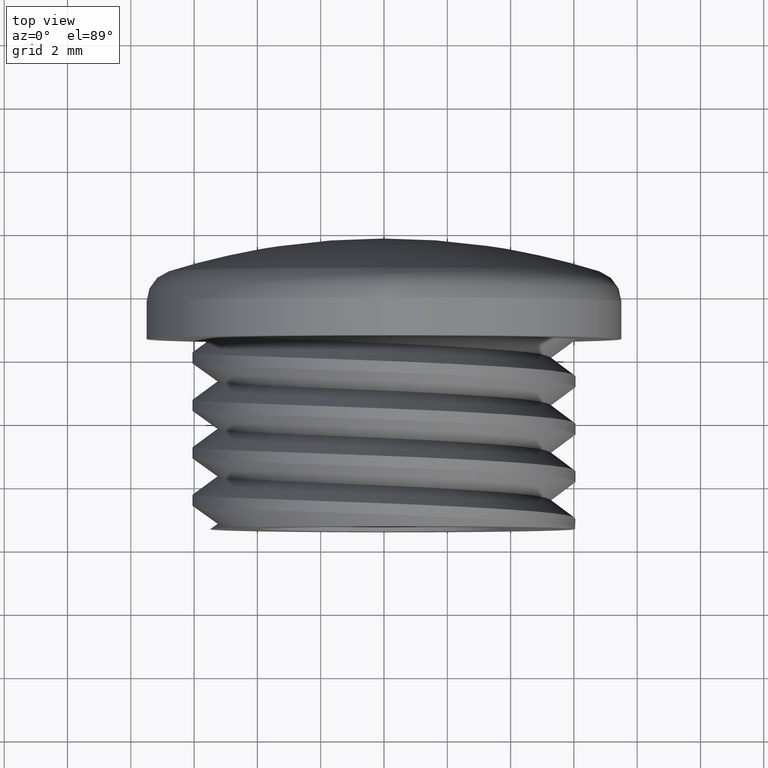
[diagram: clean part render]
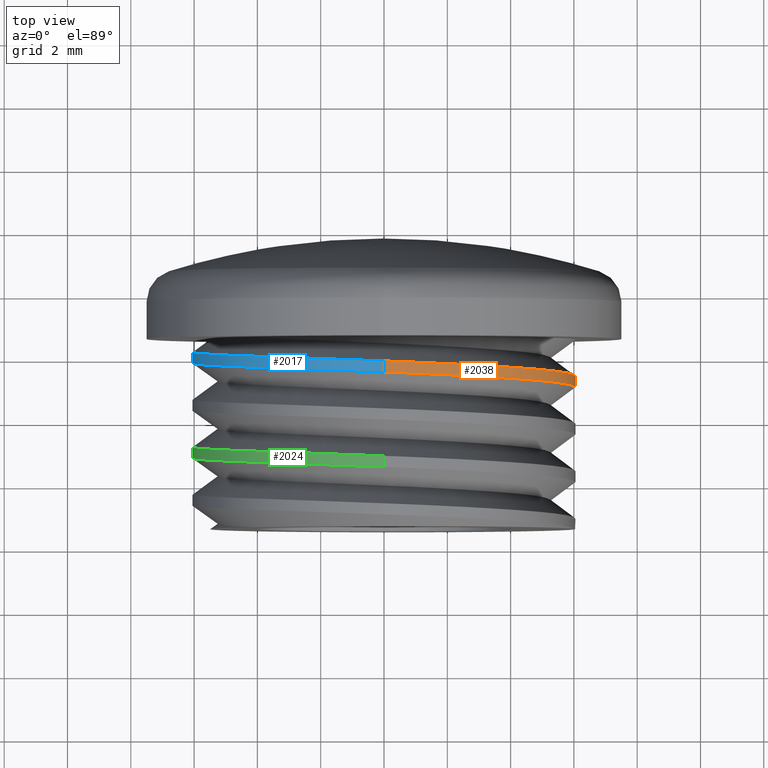
[diagram: same view with three faces highlighted in distinct colors, each labeled with its STEP entity id]
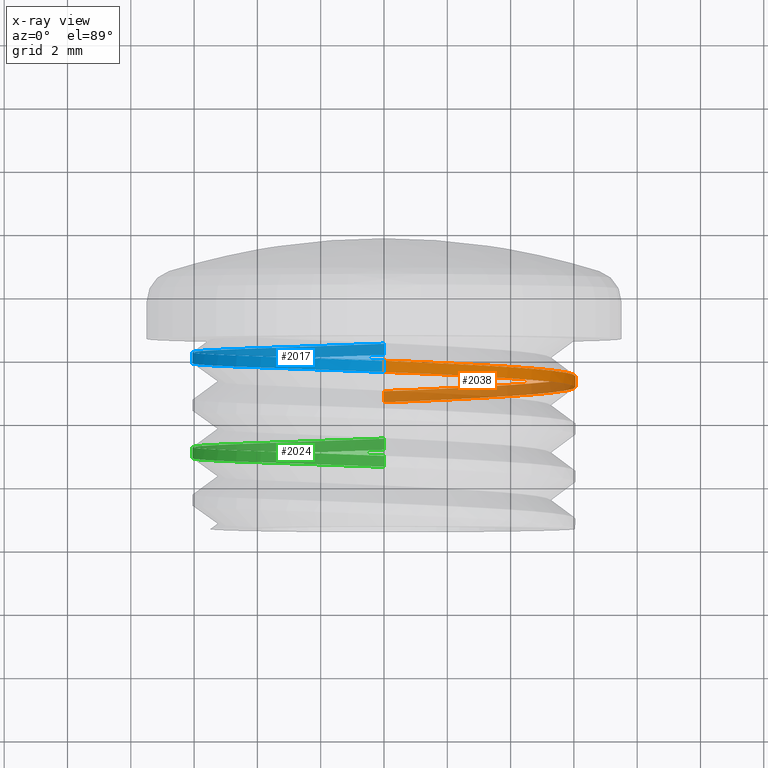
[diagram: x-ray of the same camera — body ghosted, the three highlighted faces saturated]
A machine part, top view with three faces highlighted in distinct colors.
The next image is the same camera in x-ray (body ghosted, the three faces saturated) — at least one of them is partly hidden behind the body in this view.
Their STEP definitions:

[orange] entity #2038 — the highlighted cylindrical surface (partial cylindrical patch) has radius 6.05 mm, axis along (-0, -1, -0).
#445 = FACE_OUTER_BOUND ( 'NONE', #1603, .T. ) ;
#662 = CYLINDRICAL_SURFACE ( 'NONE', #2178, 6.049999999999999800 ) ;
#663 = CARTESIAN_POINT ( 'NONE',  ( 0.0000000000000000000, 0.0000000000000000000, 0.0000000000000000000 ) ) ;
#664 = DIRECTION ( 'NONE',  ( -0.0000000000000000000, -1.000000000000000000, -0.0000000000000000000 ) ) ;
#666 = DIRECTION ( 'NONE',  ( 0.0000000000000000000, 0.0000000000000000000, -1.000000000000000000 ) ) ;
#1085 = CARTESIAN_POINT ( 'NONE',  ( -1.432325089619733300E-012, 5.449873890653093700, 6.049999999999999800 ) ) ;
#1086 = CARTESIAN_POINT ( 'NONE',  ( 2.505992052357224300, 4.793623890653036000, -6.049999999999995400 ) ) ;
#1090 = CARTESIAN_POINT ( 'NONE',  ( 4.277996026178607600, 4.887373890653036000, -4.277996026178607600 ) ) ;
#1092 = CARTESIAN_POINT ( 'NONE',  ( 2.505992052355885400, 5.356123890653108800, 6.050000000001335600 ) ) ;
#1100 = LINE ( 'NONE', #1101, #2147 ) ;
#1101 = CARTESIAN_POINT ( 'NONE',  ( 0.0000000000000000000, 0.0000000000000000000, -6.049999999999999800 ) ) ;
#1103 = CARTESIAN_POINT ( 'NONE',  ( 6.049999999999994500, 5.074873890653036000, 1.481822626968295700E-015 ) ) ;
#1109 = DIRECTION ( 'NONE',  ( -0.0000000000000000000, -1.000000000000000000, -0.0000000000000000000 ) ) ;
#1110 = CARTESIAN_POINT ( 'NONE',  ( 6.049999999999994500, 5.168623890653035100, 2.505992052357227000 ) ) ;
#1111 = CARTESIAN_POINT ( 'NONE',  ( 3.704556567420743300E-016, 4.699873890653040400, -6.049999999999999800 ) ) ;
#1125 = CARTESIAN_POINT ( 'NONE',  ( 4.277996026178606700, 5.262373890653036000, 4.277996026178608500 ) ) ;
#1130 = CARTESIAN_POINT ( 'NONE',  ( 6.049999999999995400, 4.981123890653036800, -2.505992052357224300 ) ) ;
#1182 = CARTESIAN_POINT ( 'NONE',  ( 2.505992052357227000, 5.706376109346960500, 6.050000000000001600 ) ) ;
#1189 = CARTESIAN_POINT ( 'NONE',  ( -8.632929976661989300E-013, 5.050126109346927600, -6.049999999999999800 ) ) ;
#1196 = CARTESIAN_POINT ( 'NONE',  ( 2.505992052356123000, 5.143876109346901000, -6.050000000001104700 ) ) ;
#1197 = CARTESIAN_POINT ( 'NONE',  ( 6.050000000000001600, 5.518876109346960500, 2.505992052357228800 ) ) ;
#1202 = CARTESIAN_POINT ( 'NONE',  ( 6.050000000000001600, 5.331376109346959600, -2.505992052357226100 ) ) ;
#1210 = CARTESIAN_POINT ( 'NONE',  ( 4.277996026178611200, 5.612626109346961400, 4.277996026178613000 ) ) ;
#1213 = CARTESIAN_POINT ( 'NONE',  ( -1.111366970226222900E-015, 5.800126109346960500, 6.049999999999999800 ) ) ;
#1224 = CARTESIAN_POINT ( 'NONE',  ( 4.277996026178612100, 5.237626109346959600, -4.277996026178612100 ) ) ;
#1226 = CARTESIAN_POINT ( 'NONE',  ( 6.049999999999998900, 5.425126109346960500, 1.481822626968297100E-015 ) ) ;
#1352 = CARTESIAN_POINT ( 'NONE',  ( 7.409113134841486500E-016, 0.0000000000000000000, 6.049999999999999800 ) ) ;
#1358 = LINE ( 'NONE', #1352, #2169 ) ;
#1385 = DIRECTION ( 'NONE',  ( -0.0000000000000000000, -1.000000000000000000, -0.0000000000000000000 ) ) ;
#1603 = EDGE_LOOP ( 'NONE', ( #1622, #1616, #1638, #1619 ) ) ;
#1616 = ORIENTED_EDGE ( 'NONE', *, *, #2009, .T. ) ;
#1619 = ORIENTED_EDGE ( 'NONE', *, *, #1971, .F. ) ;
#1622 = ORIENTED_EDGE ( 'NONE', *, *, #1992, .T. ) ;
#1638 = ORIENTED_EDGE ( 'NONE', *, *, #1972, .T. ) ;
#1764 = VERTEX_POINT ( 'NONE', #1826 ) ;
#1776 = VERTEX_POINT ( 'NONE', #1857 ) ;
#1806 = VERTEX_POINT ( 'NONE', #1863 ) ;
#1815 = VERTEX_POINT ( 'NONE', #1823 ) ;
#1823 = CARTESIAN_POINT ( 'NONE',  ( -8.632929976661989300E-013, 5.050126109346927600, -6.049999999999999800 ) ) ;
#1826 = CARTESIAN_POINT ( 'NONE',  ( 3.704556567420743300E-016, 4.699873890653040400, -6.049999999999999800 ) ) ;
#1857 = CARTESIAN_POINT ( 'NONE',  ( -1.111366970226222900E-015, 5.800126109346960500, 6.049999999999999800 ) ) ;
#1863 = CARTESIAN_POINT ( 'NONE',  ( -1.432325089619733300E-012, 5.449873890653093700, 6.049999999999999800 ) ) ;
#1971 = EDGE_CURVE ( 'NONE', #1815, #1764, #1100, .T. ) ;
#1972 = EDGE_CURVE ( 'NONE', #1806, #1764, #2076, .T. ) ;
#1992 = EDGE_CURVE ( 'NONE', #1815, #1776, #2054, .T. ) ;
#2009 = EDGE_CURVE ( 'NONE', #1776, #1806, #1358, .T. ) ;
#2038 = ADVANCED_FACE ( 'NONE', ( #445 ), #662, .T. ) ;
#2054 =( BOUNDED_CURVE ( )  B_SPLINE_CURVE ( 2, ( #1189, #1196, #1224, #1202, #1226, #1197, #1210, #1182, #1213 ),
 .UNSPECIFIED., .F., .T. ) 
 B_SPLINE_CURVE_WITH_KNOTS ( ( 3, 2, 2, 2, 3 ),
 ( 0.1125258476580255200, 0.1172573869102881600, 0.1219889261625507800, 0.1267204654148133800, 0.1314520046670760200 ),
 .UNSPECIFIED. ) 
 CURVE ( )  GEOMETRIC_REPRESENTATION_ITEM ( )  RATIONAL_B_SPLINE_CURVE ( ( 1.000000000000043700, 0.9238795325112428800, 1.000000000000000000, 0.9238795325112867400, 1.000000000000000000, 0.9238795325112867400, 1.000000000000000000, 0.9238795325112867400, 1.000000000000000000 ) ) 
 REPRESENTATION_ITEM ( '' )  );
#2076 =( BOUNDED_CURVE ( )  B_SPLINE_CURVE ( 2, ( #1085, #1092, #1125, #1110, #1103, #1130, #1090, #1086, #1111 ),
 .UNSPECIFIED., .F., .T. ) 
 B_SPLINE_CURVE_WITH_KNOTS ( ( 3, 2, 2, 2, 3 ),
 ( -0.1135556180597367400, -0.1088241529516597900, -0.1040926878435828300, -0.09936122273550590500, -0.09462975762742895100 ),
 .UNSPECIFIED. ) 
 CURVE ( )  GEOMETRIC_REPRESENTATION_ITEM ( )  RATIONAL_B_SPLINE_CURVE ( ( 1.000000000000053100, 0.9238795325112335600, 1.000000000000000000, 0.9238795325112867400, 1.000000000000000000, 0.9238795325112867400, 1.000000000000000000, 0.9238795325112867400, 1.000000000000000000 ) ) 
 REPRESENTATION_ITEM ( '' )  );
#2147 = VECTOR ( 'NONE', #1109, 1000.000000000000000 ) ;
#2169 = VECTOR ( 'NONE', #1385, 1000.000000000000000 ) ;
#2178 = AXIS2_PLACEMENT_3D ( 'NONE', #663, #664, #666 ) ;

[blue] entity #2017 — the highlighted cylindrical surface (partial cylindrical patch) has radius 6.05 mm, axis along (-0, -1, -0).
#1051 = CARTESIAN_POINT ( 'NONE',  ( -8.386168989998296300E-013, 6.199873890653008400, -6.050000000000001600 ) ) ;
#1071 = LINE ( 'NONE', #1102, #2134 ) ;
#1084 = CARTESIAN_POINT ( 'NONE',  ( -4.277996026178608500, 5.637373890653036000, 4.277996026178607600 ) ) ;
#1089 = CARTESIAN_POINT ( 'NONE',  ( -6.049999999999994500, 5.918623890653036000, -2.505992052357224300 ) ) ;
#1095 = CARTESIAN_POINT ( 'NONE',  ( -2.505992052358565000, 5.543623890653105200, 6.049999999998653300 ) ) ;
#1099 = CARTESIAN_POINT ( 'NONE',  ( -4.277996026178607600, 6.012373890653036000, -4.277996026178607600 ) ) ;
#1102 = CARTESIAN_POINT ( 'NONE',  ( 0.0000000000000000000, 0.0000000000000000000, -6.049999999999999800 ) ) ;
#1106 = CARTESIAN_POINT ( 'NONE',  ( -6.049999999999993600, 5.824873890653036000, -7.409113134841479600E-016 ) ) ;
#1112 = CARTESIAN_POINT ( 'NONE',  ( -2.505992052358316300, 6.106123890652978200, -6.049999999998899400 ) ) ;
#1113 = DIRECTION ( 'NONE',  ( -0.0000000000000000000, -1.000000000000000000, -0.0000000000000000000 ) ) ;
#1114 = CARTESIAN_POINT ( 'NONE',  ( -1.432325089619733300E-012, 5.449873890653093700, 6.049999999999999800 ) ) ;
#1117 = CARTESIAN_POINT ( 'NONE',  ( -6.049999999999994500, 5.731123890653036800, 2.505992052357221700 ) ) ;
#1285 = CARTESIAN_POINT ( 'NONE',  ( -6.049999999999995400, 6.081376109346964000, 2.505992052357221700 ) ) ;
#1301 = CARTESIAN_POINT ( 'NONE',  ( -2.505992052357226100, 5.893876109346964000, 6.049999999999994500 ) ) ;
#1302 = CARTESIAN_POINT ( 'NONE',  ( -4.277996026178608500, 5.987626109346964000, 4.277996026178607600 ) ) ;
#1307 = CARTESIAN_POINT ( 'NONE',  ( -6.049999999999995400, 6.268876109346964900, -2.505992052357224300 ) ) ;
#1308 = CARTESIAN_POINT ( 'NONE',  ( -4.277996026178607600, 6.362626109346963200, -4.277996026178607600 ) ) ;
#1311 = CARTESIAN_POINT ( 'NONE',  ( -1.111366970226222900E-015, 5.800126109346960500, 6.049999999999999800 ) ) ;
#1326 = CARTESIAN_POINT ( 'NONE',  ( -6.049999999999993600, 6.175126109346964000, -7.409113134841479600E-016 ) ) ;
#1329 = CARTESIAN_POINT ( 'NONE',  ( 8.146817116469705000E-013, 6.550126109346993400, -6.050000000000000700 ) ) ;
#1332 = CARTESIAN_POINT ( 'NONE',  ( -2.505992052356139900, 6.456376109347021800, -6.050000000001079000 ) ) ;
#1335 = CYLINDRICAL_SURFACE ( 'NONE', #2168, 6.049999999999999800 ) ;
#1350 = CARTESIAN_POINT ( 'NONE',  ( 0.0000000000000000000, 0.0000000000000000000, 0.0000000000000000000 ) ) ;
#1352 = CARTESIAN_POINT ( 'NONE',  ( 7.409113134841486500E-016, 0.0000000000000000000, 6.049999999999999800 ) ) ;
#1358 = LINE ( 'NONE', #1352, #2169 ) ;
#1364 = DIRECTION ( 'NONE',  ( 0.0000000000000000000, 0.0000000000000000000, -1.000000000000000000 ) ) ;
#1365 = FACE_OUTER_BOUND ( 'NONE', #1598, .T. ) ;
#1383 = DIRECTION ( 'NONE',  ( -0.0000000000000000000, -1.000000000000000000, -0.0000000000000000000 ) ) ;
#1385 = DIRECTION ( 'NONE',  ( -0.0000000000000000000, -1.000000000000000000, -0.0000000000000000000 ) ) ;
#1598 = EDGE_LOOP ( 'NONE', ( #1659, #1650, #1664, #1684 ) ) ;
#1650 = ORIENTED_EDGE ( 'NONE', *, *, #2001, .T. ) ;
#1659 = ORIENTED_EDGE ( 'NONE', *, *, #2009, .F. ) ;
#1664 = ORIENTED_EDGE ( 'NONE', *, *, #1967, .T. ) ;
#1684 = ORIENTED_EDGE ( 'NONE', *, *, #1965, .T. ) ;
#1776 = VERTEX_POINT ( 'NONE', #1857 ) ;
#1806 = VERTEX_POINT ( 'NONE', #1863 ) ;
#1855 = VERTEX_POINT ( 'NONE', #1897 ) ;
#1857 = CARTESIAN_POINT ( 'NONE',  ( -1.111366970226222900E-015, 5.800126109346960500, 6.049999999999999800 ) ) ;
#1859 = VERTEX_POINT ( 'NONE', #1902 ) ;
#1863 = CARTESIAN_POINT ( 'NONE',  ( -1.432325089619733300E-012, 5.449873890653093700, 6.049999999999999800 ) ) ;
#1897 = CARTESIAN_POINT ( 'NONE',  ( 8.146817116469705000E-013, 6.550126109346993400, -6.050000000000000700 ) ) ;
#1902 = CARTESIAN_POINT ( 'NONE',  ( -8.386168989998296300E-013, 6.199873890653008400, -6.050000000000001600 ) ) ;
#1965 = EDGE_CURVE ( 'NONE', #1859, #1806, #2058, .T. ) ;
#1967 = EDGE_CURVE ( 'NONE', #1855, #1859, #1071, .T. ) ;
#2001 = EDGE_CURVE ( 'NONE', #1776, #1855, #2059, .T. ) ;
#2009 = EDGE_CURVE ( 'NONE', #1776, #1806, #1358, .T. ) ;
#2017 = ADVANCED_FACE ( 'NONE', ( #1365 ), #1335, .T. ) ;
#2058 =( BOUNDED_CURVE ( )  B_SPLINE_CURVE ( 2, ( #1051, #1112, #1099, #1089, #1106, #1117, #1084, #1095, #1114 ),
 .UNSPECIFIED., .F., .T. ) 
 B_SPLINE_CURVE_WITH_KNOTS ( ( 3, 2, 2, 2, 3 ),
 ( -0.1324814481277615000, -0.1277499906107553200, -0.1230185330937491200, -0.1182870755767429200, -0.1135556180597367400 ),
 .UNSPECIFIED. ) 
 CURVE ( )  GEOMETRIC_REPRESENTATION_ITEM ( )  RATIONAL_B_SPLINE_CURVE ( ( 0.9999999999999565900, 0.9238795325113301500, 1.000000000000000000, 0.9238795325112867400, 1.000000000000000000, 0.9238795325112867400, 1.000000000000000000, 0.9238795325113399200, 0.9999999999999468200 ) ) 
 REPRESENTATION_ITEM ( '' )  );
#2059 =( BOUNDED_CURVE ( )  B_SPLINE_CURVE ( 2, ( #1311, #1301, #1302, #1285, #1326, #1307, #1308, #1332, #1329 ),
 .UNSPECIFIED., .F., .T. ) 
 B_SPLINE_CURVE_WITH_KNOTS ( ( 3, 2, 2, 2, 3 ),
 ( 0.1314520046670760200, 0.1361835515105396800, 0.1409150983540033400, 0.1456466451974670100, 0.1503781920409306700 ),
 .UNSPECIFIED. ) 
 CURVE ( )  GEOMETRIC_REPRESENTATION_ITEM ( )  RATIONAL_B_SPLINE_CURVE ( ( 1.000000000000000000, 0.9238795325112867400, 1.000000000000000000, 0.9238795325112867400, 1.000000000000000000, 0.9238795325112867400, 1.000000000000000000, 0.9238795325112437700, 1.000000000000043100 ) ) 
 REPRESENTATION_ITEM ( '' )  );
#2134 = VECTOR ( 'NONE', #1113, 1000.000000000000000 ) ;
#2168 = AXIS2_PLACEMENT_3D ( 'NONE', #1350, #1383, #1364 ) ;
#2169 = VECTOR ( 'NONE', #1385, 1000.000000000000000 ) ;

[green] entity #2024 — the highlighted cylindrical surface (partial cylindrical patch) has radius 6.05 mm, axis along (-0, -1, -0).
#1037 = DIRECTION ( 'NONE',  ( -0.0000000000000000000, -1.000000000000000000, -0.0000000000000000000 ) ) ;
#1048 = CARTESIAN_POINT ( 'NONE',  ( 0.0000000000000000000, 0.0000000000000000000, -6.049999999999999800 ) ) ;
#1080 = LINE ( 'NONE', #1048, #2130 ) ;
#1091 = CARTESIAN_POINT ( 'NONE',  ( 8.393578103133368600E-013, 3.199873890653072800, -6.049999999999998000 ) ) ;
#1093 = CARTESIAN_POINT ( 'NONE',  ( -6.050000000000006900, 2.731123890653044800, 2.505992052357226100 ) ) ;
#1094 = CARTESIAN_POINT ( 'NONE',  ( -4.277996026178617400, 2.637373890653044400, 4.277996026178616500 ) ) ;
#1096 = CARTESIAN_POINT ( 'NONE',  ( -2.505992052357231400, 2.543623890653044000, 6.050000000000006000 ) ) ;
#1097 = CARTESIAN_POINT ( 'NONE',  ( -1.111366970226222900E-015, 2.449873890653040000, 6.049999999999999800 ) ) ;
#1115 = CARTESIAN_POINT ( 'NONE',  ( -2.505992052356139400, 3.106123890653102100, -6.050000000001095800 ) ) ;
#1119 = CARTESIAN_POINT ( 'NONE',  ( -4.277996026178616500, 3.012373890653044400, -4.277996026178616500 ) ) ;
#1122 = CARTESIAN_POINT ( 'NONE',  ( -6.050000000000006000, 2.824873890653044400, -7.409113134841493400E-016 ) ) ;
#1129 = CARTESIAN_POINT ( 'NONE',  ( -6.050000000000006900, 2.918623890653044400, -2.505992052357229700 ) ) ;
#1240 = LINE ( 'NONE', #1241, #2133 ) ;
#1241 = CARTESIAN_POINT ( 'NONE',  ( 7.409113134841486500E-016, 0.0000000000000000000, 6.049999999999999800 ) ) ;
#1243 = DIRECTION ( 'NONE',  ( -0.0000000000000000000, -1.000000000000000000, -0.0000000000000000000 ) ) ;
#1288 = CARTESIAN_POINT ( 'NONE',  ( 1.479454553011943900E-012, 2.800126109346905900, 6.050000000000000700 ) ) ;
#1290 = CARTESIAN_POINT ( 'NONE',  ( -2.505992052355865400, 2.893876109346893400, 6.050000000001351600 ) ) ;
#1305 = CARTESIAN_POINT ( 'NONE',  ( -4.277996026178607600, 2.987626109346965800, 4.277996026178606700 ) ) ;
#1349 = CARTESIAN_POINT ( 'NONE',  ( -6.049999999999993600, 3.081376109346966700, 2.505992052357220800 ) ) ;
#1360 = CARTESIAN_POINT ( 'NONE',  ( -4.277996026178606700, 3.362626109346965800, -4.277996026178606700 ) ) ;
#1361 = CARTESIAN_POINT ( 'NONE',  ( -2.505992052357221700, 3.456376109346965800, -6.049999999999993600 ) ) ;
#1371 = CARTESIAN_POINT ( 'NONE',  ( -6.049999999999993600, 3.268876109346965400, -2.505992052357223900 ) ) ;
#1380 = CARTESIAN_POINT ( 'NONE',  ( -6.049999999999991800, 3.175126109346965400, -7.409113134841476700E-016 ) ) ;
#1384 = CARTESIAN_POINT ( 'NONE',  ( 3.704556567420743300E-016, 3.550126109346960000, -6.049999999999999800 ) ) ;
#1429 = FACE_OUTER_BOUND ( 'NONE', #1637, .T. ) ;
#1434 = CYLINDRICAL_SURFACE ( 'NONE', #2171, 6.049999999999999800 ) ;
#1435 = CARTESIAN_POINT ( 'NONE',  ( 0.0000000000000000000, 0.0000000000000000000, 0.0000000000000000000 ) ) ;
#1436 = DIRECTION ( 'NONE',  ( -0.0000000000000000000, -1.000000000000000000, -0.0000000000000000000 ) ) ;
#1437 = DIRECTION ( 'NONE',  ( 0.0000000000000000000, 0.0000000000000000000, -1.000000000000000000 ) ) ;
#1625 = ORIENTED_EDGE ( 'NONE', *, *, #1974, .T. ) ;
#1628 = ORIENTED_EDGE ( 'NONE', *, *, #2008, .T. ) ;
#1637 = EDGE_LOOP ( 'NONE', ( #1666, #1628, #1657, #1625 ) ) ;
#1657 = ORIENTED_EDGE ( 'NONE', *, *, #1963, .T. ) ;
#1666 = ORIENTED_EDGE ( 'NONE', *, *, #1997, .F. ) ;
#1787 = VERTEX_POINT ( 'NONE', #1830 ) ;
#1803 = CARTESIAN_POINT ( 'NONE',  ( -1.111366970226222900E-015, 2.449873890653040000, 6.049999999999999800 ) ) ;
#1809 = VERTEX_POINT ( 'NONE', #1803 ) ;
#1830 = CARTESIAN_POINT ( 'NONE',  ( 3.704556567420743300E-016, 3.550126109346960000, -6.049999999999999800 ) ) ;
#1845 = VERTEX_POINT ( 'NONE', #1901 ) ;
#1848 = VERTEX_POINT ( 'NONE', #1873 ) ;
#1873 = CARTESIAN_POINT ( 'NONE',  ( 1.479454553011943900E-012, 2.800126109346905900, 6.050000000000000700 ) ) ;
#1901 = CARTESIAN_POINT ( 'NONE',  ( 8.393578103133368600E-013, 3.199873890653072800, -6.049999999999998000 ) ) ;
#1963 = EDGE_CURVE ( 'NONE', #1787, #1845, #1080, .T. ) ;
#1974 = EDGE_CURVE ( 'NONE', #1845, #1809, #2075, .T. ) ;
#1997 = EDGE_CURVE ( 'NONE', #1848, #1809, #1240, .T. ) ;
#2008 = EDGE_CURVE ( 'NONE', #1848, #1787, #2060, .T. ) ;
#2024 = ADVANCED_FACE ( 'NONE', ( #1429 ), #1434, .T. ) ;
#2060 =( BOUNDED_CURVE ( )  B_SPLINE_CURVE ( 2, ( #1288, #1290, #1305, #1349, #1380, #1371, #1360, #1361, #1384 ),
 .UNSPECIFIED., .F., .T. ) 
 B_SPLINE_CURVE_WITH_KNOTS ( ( 3, 2, 2, 2, 3 ),
 ( 0.05574755881921256800, 0.06047907529794550200, 0.06521059177667842800, 0.06994210825541133400, 0.07467362473414426700 ),
 .UNSPECIFIED. ) 
 CURVE ( )  GEOMETRIC_REPRESENTATION_ITEM ( )  RATIONAL_B_SPLINE_CURVE ( ( 1.000000000000054000, 0.9238795325112327800, 1.000000000000000000, 0.9238795325112867400, 1.000000000000000000, 0.9238795325112867400, 1.000000000000000000, 0.9238795325112867400, 1.000000000000000000 ) ) 
 REPRESENTATION_ITEM ( '' )  );
#2075 =( BOUNDED_CURVE ( )  B_SPLINE_CURVE ( 2, ( #1091, #1115, #1119, #1129, #1122, #1093, #1094, #1096, #1097 ),
 .UNSPECIFIED., .F., .T. ) 
 B_SPLINE_CURVE_WITH_KNOTS ( ( 3, 2, 2, 2, 3 ),
 ( -0.05677794566978331500, -0.05204645778842377500, -0.04731496990706423500, -0.04258348202570468000, -0.03785199414434514000 ),
 .UNSPECIFIED. ) 
 CURVE ( )  GEOMETRIC_REPRESENTATION_ITEM ( )  RATIONAL_B_SPLINE_CURVE ( ( 1.000000000000043300, 0.9238795325112435500, 1.000000000000000000, 0.9238795325112867400, 1.000000000000000000, 0.9238795325112867400, 1.000000000000000000, 0.9238795325112867400, 1.000000000000000000 ) ) 
 REPRESENTATION_ITEM ( '' )  );
#2130 = VECTOR ( 'NONE', #1037, 1000.000000000000000 ) ;
#2133 = VECTOR ( 'NONE', #1243, 1000.000000000000000 ) ;
#2171 = AXIS2_PLACEMENT_3D ( 'NONE', #1435, #1436, #1437 ) ;